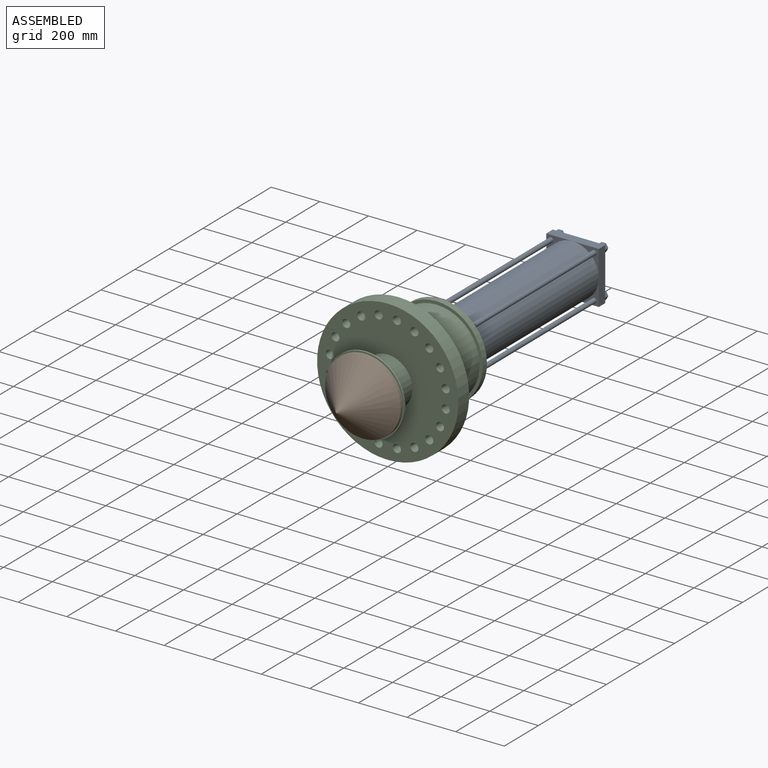
[diagram: assembled view]
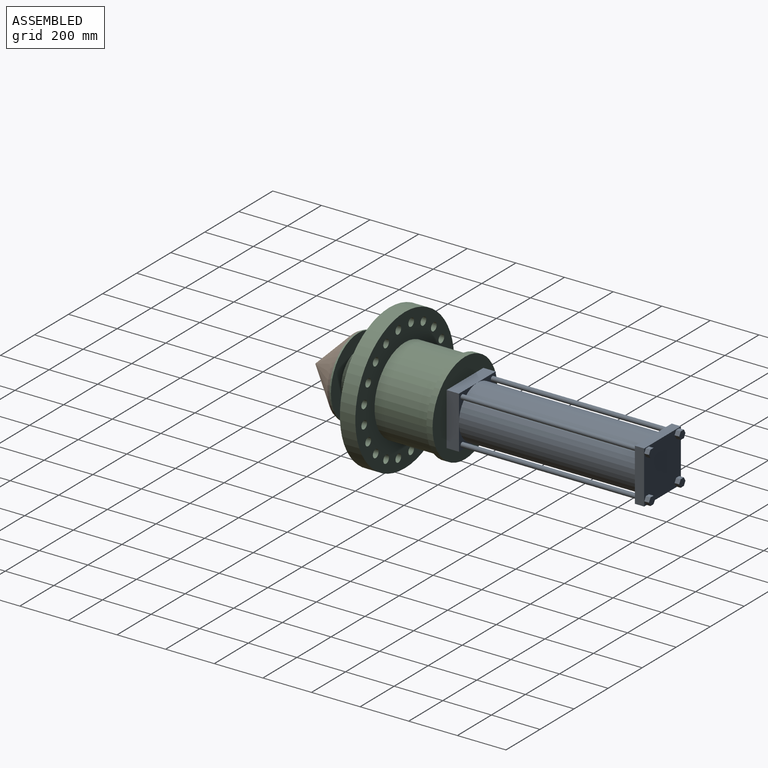
[diagram: assembled view, second angle]
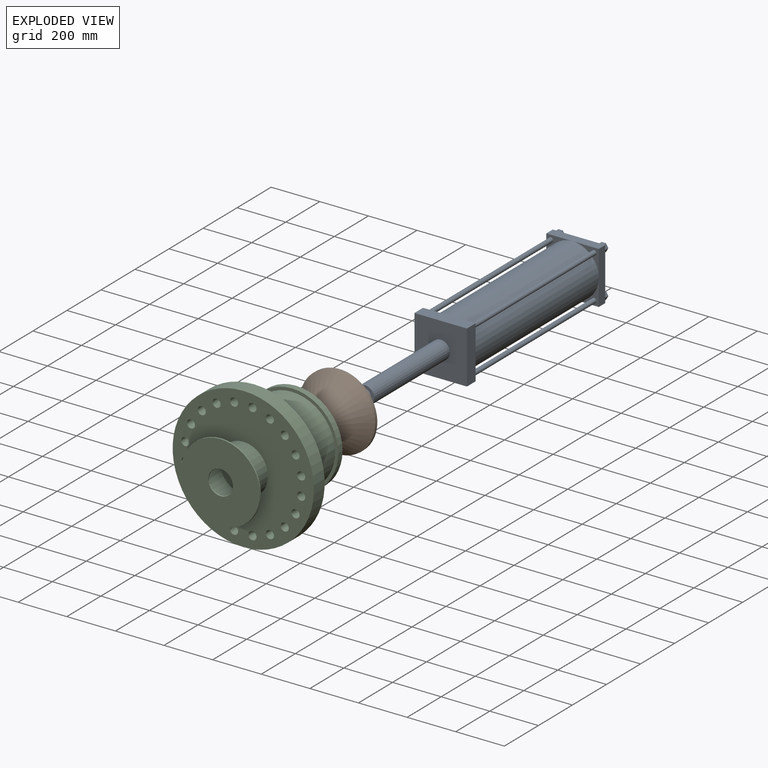
[diagram: exploded view]
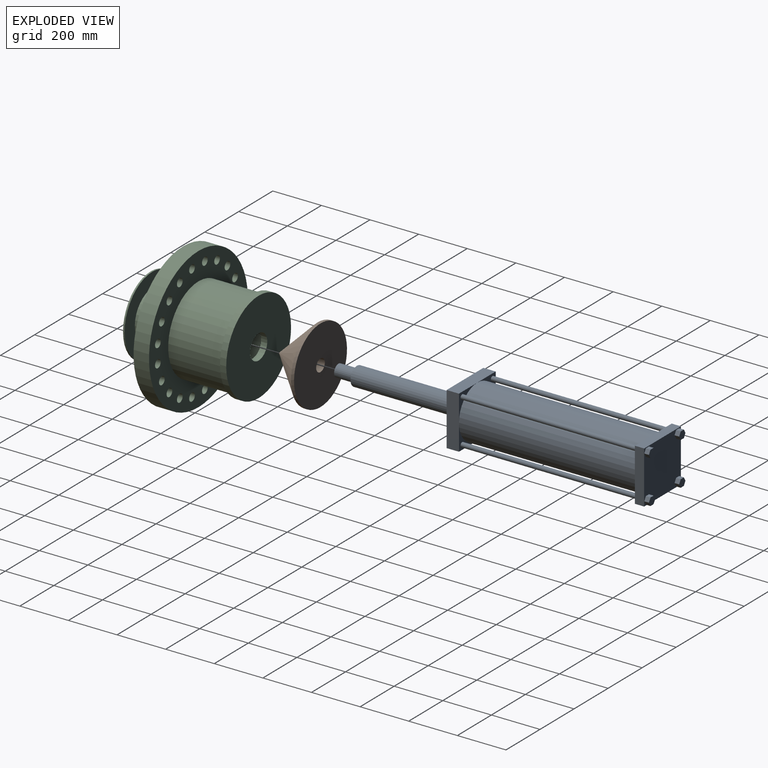
[diagram: exploded view, second angle]
ASSEMBLY  parts=3 mates=2
PART A: 58 faces, bbox 215.9x1352.6x215.9 mm
  f0: plane 215.9x215.9mm, normal (0,1,0), area 43120.8mm2, adj f16,f17,f18,f19,f23,f24,f25,f26
  f1: plane 107.95x107.95mm, normal (0,1,0), area 2215.8mm2, adj f4,f5,f10,f11
  f2: plane 107.95x107.95mm, normal (0,1,0), area 2215.8mm2, adj f4,f7,f10,f13
  f3: plane 107.95x107.95mm, normal (0,1,0), area 2215.8mm2, adj f6,f7,f10,f14
  f4: plane 215.9x50.8mm, normal (1,0,0), area 10967.7mm2, adj f1,f2,f5,f7,f9
  f5: plane 215.9x50.8mm, normal (0,0,1), area 10967.7mm2, adj f1,f4,f6,f8,f9
  f6: plane 215.9x50.8mm, normal (-1,0,0), area 10967.7mm2, adj f3,f5,f7,f8,f9
  f7: plane 215.9x50.8mm, normal (0,0,-1), area 10967.7mm2, adj f2,f3,f4,f6,f9
  f8: plane 107.95x107.95mm, normal (0,1,0), area 2215.8mm2, adj f5,f6,f10,f12
  f9: plane 215.9x215.9mm, normal (0,-1,0), area 42052.4mm2, adj f4,f5,f6,f7,f51
  f10: cylinder r=107.95mm len=723.9mm, axis (0,-1,0), area 490999.5mm2, adj f1,f2,f3,f8,f15,f20,f21,f22
  f11: cylinder r=9.53mm len=723.9mm, axis (0,-1,0), area 43323.5mm2, adj f1,f22
  f12: cylinder r=9.53mm len=723.9mm, axis (0,-1,0), area 43323.5mm2, adj f8,f15
  f13: cylinder r=9.53mm len=723.9mm, axis (0,-1,0), area 43323.5mm2, adj f2,f21
  f14: cylinder r=9.53mm len=723.9mm, axis (0,-1,0), area 43323.5mm2, adj f3,f20
  f15: plane 107.95x107.95mm, normal (0,-1,0), area 2215.8mm2, adj f10,f12,f16,f17
  f16: plane 215.9x38.1mm, normal (0,0,1), area 8225.8mm2, adj f0,f15,f17,f19,f22
  f17: plane 215.9x38.1mm, normal (-1,0,0), area 8225.8mm2, adj f0,f15,f16,f18,f20
  f18: plane 215.9x38.1mm, normal (0,0,-1), area 8225.8mm2, adj f0,f17,f19,f20,f21
  f19: plane 215.9x38.1mm, normal (1,0,0), area 8225.8mm2, adj f0,f16,f18,f21,f22
  f20: plane 107.95x107.95mm, normal (0,-1,0), area 2215.8mm2, adj f10,f14,f17,f18
  f21: plane 107.95x107.95mm, normal (0,-1,0), area 2215.8mm2, adj f10,f13,f18,f19
  f22: plane 107.95x107.95mm, normal (0,-1,0), area 2215.8mm2, adj f10,f11,f16,f19
  f23: plane 19.05x18.33mm, normal (0,0,-1), area 349.2mm2, adj f0,f24,f28,f29
  f24: plane 19.05x15.88mm, normal (-0.87,0,-0.5), area 349.2mm2, adj f0,f23,f25,f29
  f25: plane 19.05x15.88mm, normal (-0.87,0,0.5), area 349.2mm2, adj f0,f24,f26,f29
  f26: plane 19.05x18.33mm, normal (0,0,1), area 349.2mm2, adj f0,f25,f27,f29
  f27: plane 19.05x15.88mm, normal (0.87,0,0.5), area 349.2mm2, adj f0,f26,f28,f29
  f28: plane 19.05x15.88mm, normal (0.87,0,-0.5), area 349.2mm2, adj f0,f23,f27,f29
  f29: plane 36.66x31.75mm, normal (0,1,0), area 873mm2, adj f23,f24,f25,f26,f27,f28
  f30: plane 19.05x15.88mm, normal (0.87,0,0.5), area 349.2mm2, adj f0,f31,f35,f36
  f31: plane 19.05x15.88mm, normal (0.87,0,-0.5), area 349.2mm2, adj f0,f30,f32,f36
  f32: plane 19.05x18.33mm, normal (0,0,-1), area 349.2mm2, adj f0,f31,f33,f36
  f33: plane 19.05x15.88mm, normal (-0.87,0,-0.5), area 349.2mm2, adj f0,f32,f34,f36
  f34: plane 19.05x15.88mm, normal (-0.87,0,0.5), area 349.2mm2, adj f0,f33,f35,f36
  f35: plane 19.05x18.33mm, normal (0,0,1), area 349.2mm2, adj f0,f30,f34,f36
  f36: plane 36.66x31.75mm, normal (0,1,0), area 873mm2, adj f30,f31,f32,f33,f34,f35
  f37: plane 19.05x15.88mm, normal (-0.87,0,0.5), area 349.2mm2, adj f0,f38,f42,f43
  f38: plane 19.05x18.33mm, normal (0,0,1), area 349.2mm2, adj f0,f37,f39,f43
  f39: plane 19.05x15.88mm, normal (0.87,0,0.5), area 349.2mm2, adj f0,f38,f40,f43
  f40: plane 19.05x15.88mm, normal (0.87,0,-0.5), area 349.2mm2, adj f0,f39,f41,f43
  f41: plane 19.05x18.33mm, normal (0,0,-1), area 349.2mm2, adj f0,f40,f42,f43
  f42: plane 19.05x15.88mm, normal (-0.87,0,-0.5), area 349.2mm2, adj f0,f37,f41,f43
  f43: plane 36.66x31.75mm, normal (0,1,0), area 873mm2, adj f37,f38,f39,f40,f41,f42
  f44: plane 19.05x15.88mm, normal (-0.87,0,0.5), area 349.2mm2, adj f0,f45,f49,f50
  f45: plane 19.05x18.33mm, normal (0,0,1), area 349.2mm2, adj f0,f44,f46,f50
  f46: plane 19.05x15.88mm, normal (0.87,0,0.5), area 349.2mm2, adj f0,f45,f47,f50
  f47: plane 19.05x15.88mm, normal (0.87,0,-0.5), area 349.2mm2, adj f0,f46,f48,f50
  f48: plane 19.05x18.33mm, normal (0,0,-1), area 349.2mm2, adj f0,f47,f49,f50
  f49: plane 19.05x15.88mm, normal (-0.87,0,-0.5), area 349.2mm2, adj f0,f44,f48,f50
  f50: plane 36.66x31.75mm, normal (0,1,0), area 873mm2, adj f44,f45,f46,f47,f48,f49
  f51: cylinder r=38.1mm len=444.5mm, axis (0,1,0), area 106408.6mm2, adj f9,f52
  f52: plane 76.2x76.2mm, normal (0,-1,0), area 2533.5mm2, adj f51,f53
  f53: cylinder r=25.4mm len=76.2mm, axis (0,1,0), area 12161mm2, adj f52,f54
  f54: plane 50.8x50.8mm, normal (0,-1,0), area 2026.8mm2, adj f53
  f55: plane 203.2x203.2mm, normal (0,1,0), area 32429.3mm2, adj f56
  f56: cylinder r=101.6mm len=723.9mm, axis (0,-1,0), area 462117.2mm2, adj f55,f57
  f57: plane 203.2x203.2mm, normal (0,-1,0), area 32429.3mm2, adj f56
PART B: 5 faces, bbox 311.2x171.5x311.2 mm
  f0: cylinder r=155.57mm len=311.15mm, axis (0,1,0), area 12414.3mm2, adj f1,f2
  f1: plane 311.15x311.15mm, normal (0,1,0), area 74011mm2, adj f0,f3
  f2: cone r=0mm half-angle=44.4deg, axis (0,1,0), area 108636.5mm2, adj f0
  f3: cylinder r=25.4mm len=76.2mm, axis (0,1,0), area 12161mm2, adj f1,f4
  f4: plane 50.8x50.8mm, normal (0,1,0), area 2026.8mm2, adj f3
PART C: 40 faces, bbox 581x444.5x581 mm
  f0: plane 330.2x330.2mm, normal (0,1,0), area 77526.2mm2, adj f2,f33
  f1: plane 190.5x190.5mm, normal (0,-1,0), area 20395mm2, adj f2,f26
  f2: cylinder r=50.8mm len=101.6mm, axis (0,1,0), area 20268.3mm2, adj f0,f1
  f3: cylinder r=16.67mm len=63.5mm, axis (0,1,0), area 6650.5mm2, adj f24,f25
  f4: cylinder r=16.67mm len=63.5mm, axis (0,1,0), area 6650.5mm2, adj f24,f25
  f5: cylinder r=16.67mm len=63.5mm, axis (0,1,0), area 6650.5mm2, adj f24,f25
  f6: cylinder r=16.67mm len=63.5mm, axis (0,1,0), area 6650.5mm2, adj f24,f25
  f7: cylinder r=16.67mm len=63.5mm, axis (0,1,0), area 6650.5mm2, adj f24,f25
  f8: cylinder r=16.67mm len=63.5mm, axis (0,1,0), area 6650.5mm2, adj f24,f25
  f9: cylinder r=16.67mm len=63.5mm, axis (0,1,0), area 6650.5mm2, adj f24,f25
  f10: cylinder r=16.67mm len=63.5mm, axis (0,1,0), area 6650.5mm2, adj f24,f25
  f11: cylinder r=16.67mm len=63.5mm, axis (0,1,0), area 6650.5mm2, adj f24,f25
  f12: cylinder r=16.67mm len=63.5mm, axis (0,1,0), area 6650.5mm2, adj f24,f25
  f13: cylinder r=16.67mm len=63.5mm, axis (0,1,0), area 6650.5mm2, adj f24,f25
  f14: cylinder r=16.67mm len=63.5mm, axis (0,1,0), area 6650.5mm2, adj f24,f25
  f15: cylinder r=16.67mm len=63.5mm, axis (0,1,0), area 6650.5mm2, adj f24,f25
  f16: cylinder r=16.67mm len=63.5mm, axis (0,1,0), area 6650.5mm2, adj f24,f25
  f17: cylinder r=16.67mm len=63.5mm, axis (0,1,0), area 6650.5mm2, adj f24,f25
  f18: cylinder r=16.67mm len=63.5mm, axis (0,1,0), area 6650.5mm2, adj f24,f25
  f19: cylinder r=16.67mm len=63.5mm, axis (0,1,0), area 6650.5mm2, adj f24,f25
  f20: cylinder r=16.67mm len=63.5mm, axis (0,1,0), area 6650.5mm2, adj f24,f25
  f21: cylinder r=16.67mm len=63.5mm, axis (0,1,0), area 6650.5mm2, adj f24,f25
  f22: cylinder r=16.67mm len=63.5mm, axis (0,1,0), area 6650.5mm2, adj f24,f25
  f23: cylinder r=290.51mm len=581.03mm, axis (0,1,0), area 115909.3mm2, adj f24,f25
  f24: plane 581.03x581.03mm, normal (0,-1,0), area 215255.7mm2, adj f3,f4,f5,f6,f7,f8,f9,f10
  f25: plane 581.03x581.03mm, normal (0,1,0), area 148370.3mm2, adj f3,f4,f5,f6,f7,f8,f9,f10
  f26: cylinder r=95.25mm len=190.5mm, axis (0,1,0), area 76006.1mm2, adj f1,f28
  f27: cylinder r=101.6mm len=203.2mm, axis (0,1,0), area 81073.2mm2, adj f24,f32
  f28: plane 190.5x190.5mm, normal (0,1,0), area 20395mm2, adj f26,f30
  f29: cylinder r=161.93mm len=323.85mm, axis (0,1,0), area 6460.5mm2, adj f31,f32
  f30: cylinder r=50.8mm len=101.6mm, axis (0,1,0), area 2026.8mm2, adj f28,f31
  f31: plane 323.85x323.85mm, normal (0,-1,0), area 74264.3mm2, adj f29,f30
  f32: plane 323.85x323.85mm, normal (0,1,0), area 49942.4mm2, adj f27,f29
  f33: cylinder r=165.1mm len=330.2mm, axis (0,-1,0), area 230551.9mm2, adj f0,f35
  f34: cylinder r=177.8mm len=355.6mm, axis (0,-1,0), area 248286.7mm2, adj f25,f39
  f35: plane 330.2x330.2mm, normal (0,-1,0), area 77526.2mm2, adj f33,f37
  f36: cylinder r=190.5mm len=381mm, axis (0,-1,0), area 30402.4mm2, adj f38,f39
  f37: cylinder r=50.8mm len=101.6mm, axis (0,-1,0), area 8107.3mm2, adj f35,f38
  f38: plane 381x381mm, normal (0,1,0), area 105901.9mm2, adj f36,f37
  f39: plane 381x381mm, normal (0,-1,0), area 14694.5mm2, adj f34,f36
PLACE A t=(0,311.15,0)mm
PLACE B t=(0,-133.35,0)mm
PLACE C t=(0,63.5,0)mm
MATE fastened A.f51 <-> C.f2  axis (0,-1,0) through (0,311.15,0)mm
MATE fastened B.f3 <-> A.f51  axis (0,1,0) through (0,-133.35,0)mm
